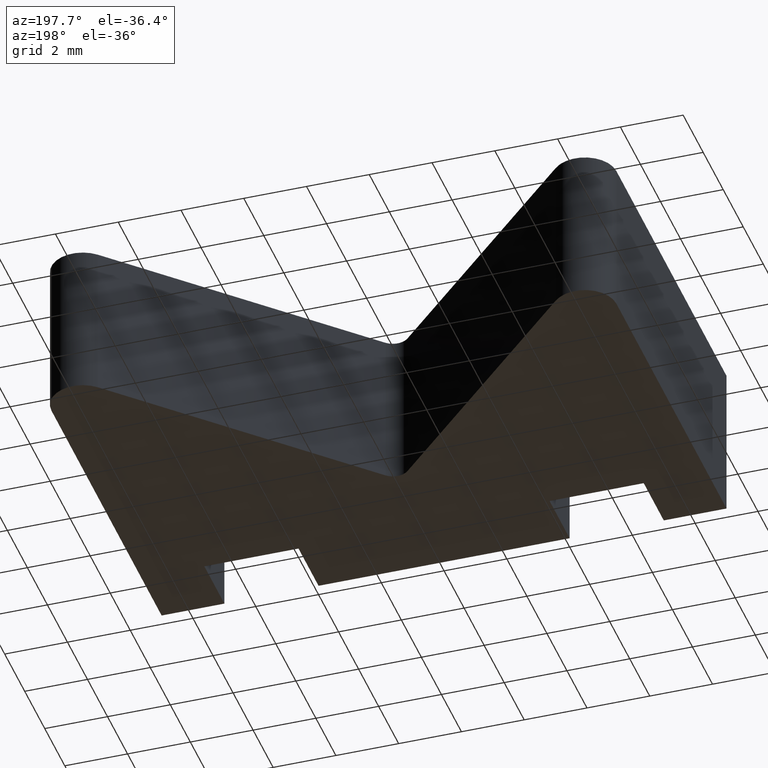
[diagram: clean part render]
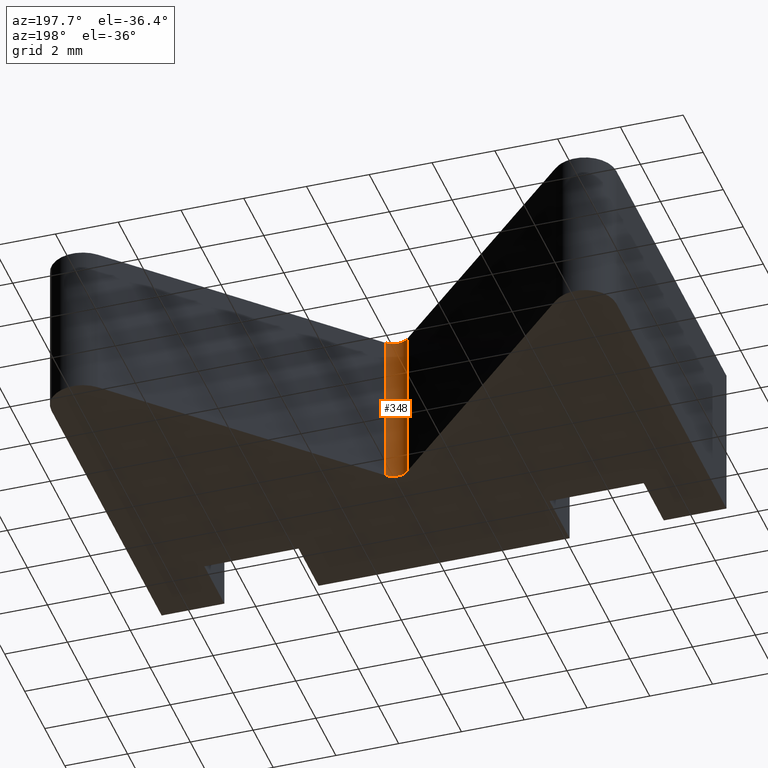
[diagram: same view with one face highlighted and labeled with its STEP entity id]
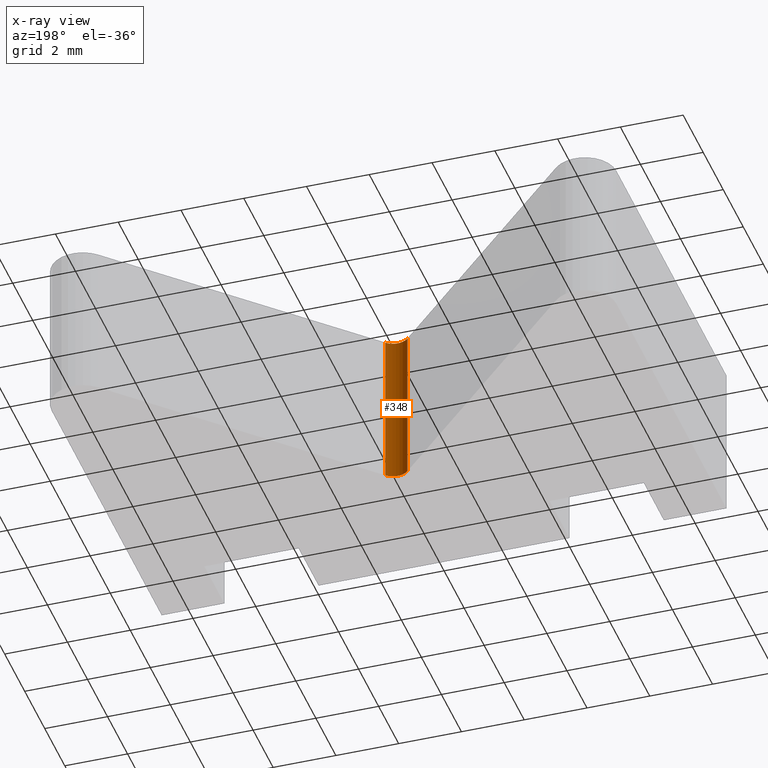
[diagram: x-ray of the same camera — body ghosted, the highlighted face saturated]
A machine part, auxiliary view. The second image highlights one B-rep face of the part: STEP entity #348.
The next image is the same camera in x-ray: the body ghosted, the highlighted face saturated — about 0% of this face is hidden behind the body in this view.
In plain terms, the highlighted cylindrical surface (edge-blend (fillet) strip) has radius 0.5 mm, axis along (0, 0, 1).
Its self-contained STEP definition (entity closure, byte-faithful):
#15=CYLINDRICAL_SURFACE('',#393,0.500000000000001);
#31=FACE_OUTER_BOUND('',#49,.T.);
#49=EDGE_LOOP('',(#285,#286,#287,#288));
#56=CIRCLE('',#379,0.500000000000001);
#59=CIRCLE('',#394,0.500000000000001);
#95=LINE('',#572,#137);
#96=LINE('',#576,#138);
#137=VECTOR('',#469,10.);
#138=VECTOR('',#474,10.);
#158=VERTEX_POINT('',#520);
#159=VERTEX_POINT('',#522);
#172=VERTEX_POINT('',#570);
#173=VERTEX_POINT('',#574);
#190=EDGE_CURVE('',#159,#158,#56,.T.);
#215=EDGE_CURVE('',#172,#158,#95,.T.);
#216=EDGE_CURVE('',#172,#173,#59,.T.);
#217=EDGE_CURVE('',#173,#159,#96,.T.);
#285=ORIENTED_EDGE('',*,*,#216,.T.);
#286=ORIENTED_EDGE('',*,*,#217,.T.);
#287=ORIENTED_EDGE('',*,*,#190,.T.);
#288=ORIENTED_EDGE('',*,*,#215,.F.);
#348=ADVANCED_FACE('',(#31),#15,.F.);
#379=AXIS2_PLACEMENT_3D('',#523,#419,#420);
#393=AXIS2_PLACEMENT_3D('',#573,#470,#471);
#394=AXIS2_PLACEMENT_3D('',#575,#472,#473);
#419=DIRECTION('center_axis',(0.,0.,-1.));
#420=DIRECTION('ref_axis',(-0.707106781186547,-0.707106781186548,0.));
#469=DIRECTION('',(0.,0.,-1.));
#470=DIRECTION('center_axis',(0.,0.,1.));
#471=DIRECTION('ref_axis',(-0.707106781186547,-0.707106781186548,0.));
#472=DIRECTION('center_axis',(0.,0.,1.));
#473=DIRECTION('ref_axis',(-0.707106781186547,-0.707106781186548,0.));
#474=DIRECTION('',(0.,0.,-1.));
#520=CARTESIAN_POINT('',(-0.353553390593275,2.76776695296637,-2.5));
#522=CARTESIAN_POINT('',(0.353553390593275,2.76776695296637,-2.5));
#523=CARTESIAN_POINT('Origin',(0.,3.12132034355965,-2.5));
#570=CARTESIAN_POINT('',(-0.353553390593275,2.76776695296637,2.5));
#572=CARTESIAN_POINT('',(-0.353553390593275,2.76776695296637,0.));
#573=CARTESIAN_POINT('Origin',(0.,3.12132034355965,0.));
#574=CARTESIAN_POINT('',(0.353553390593275,2.76776695296637,2.5));
#575=CARTESIAN_POINT('Origin',(0.,3.12132034355965,2.5));
#576=CARTESIAN_POINT('',(0.353553390593275,2.76776695296637,0.));